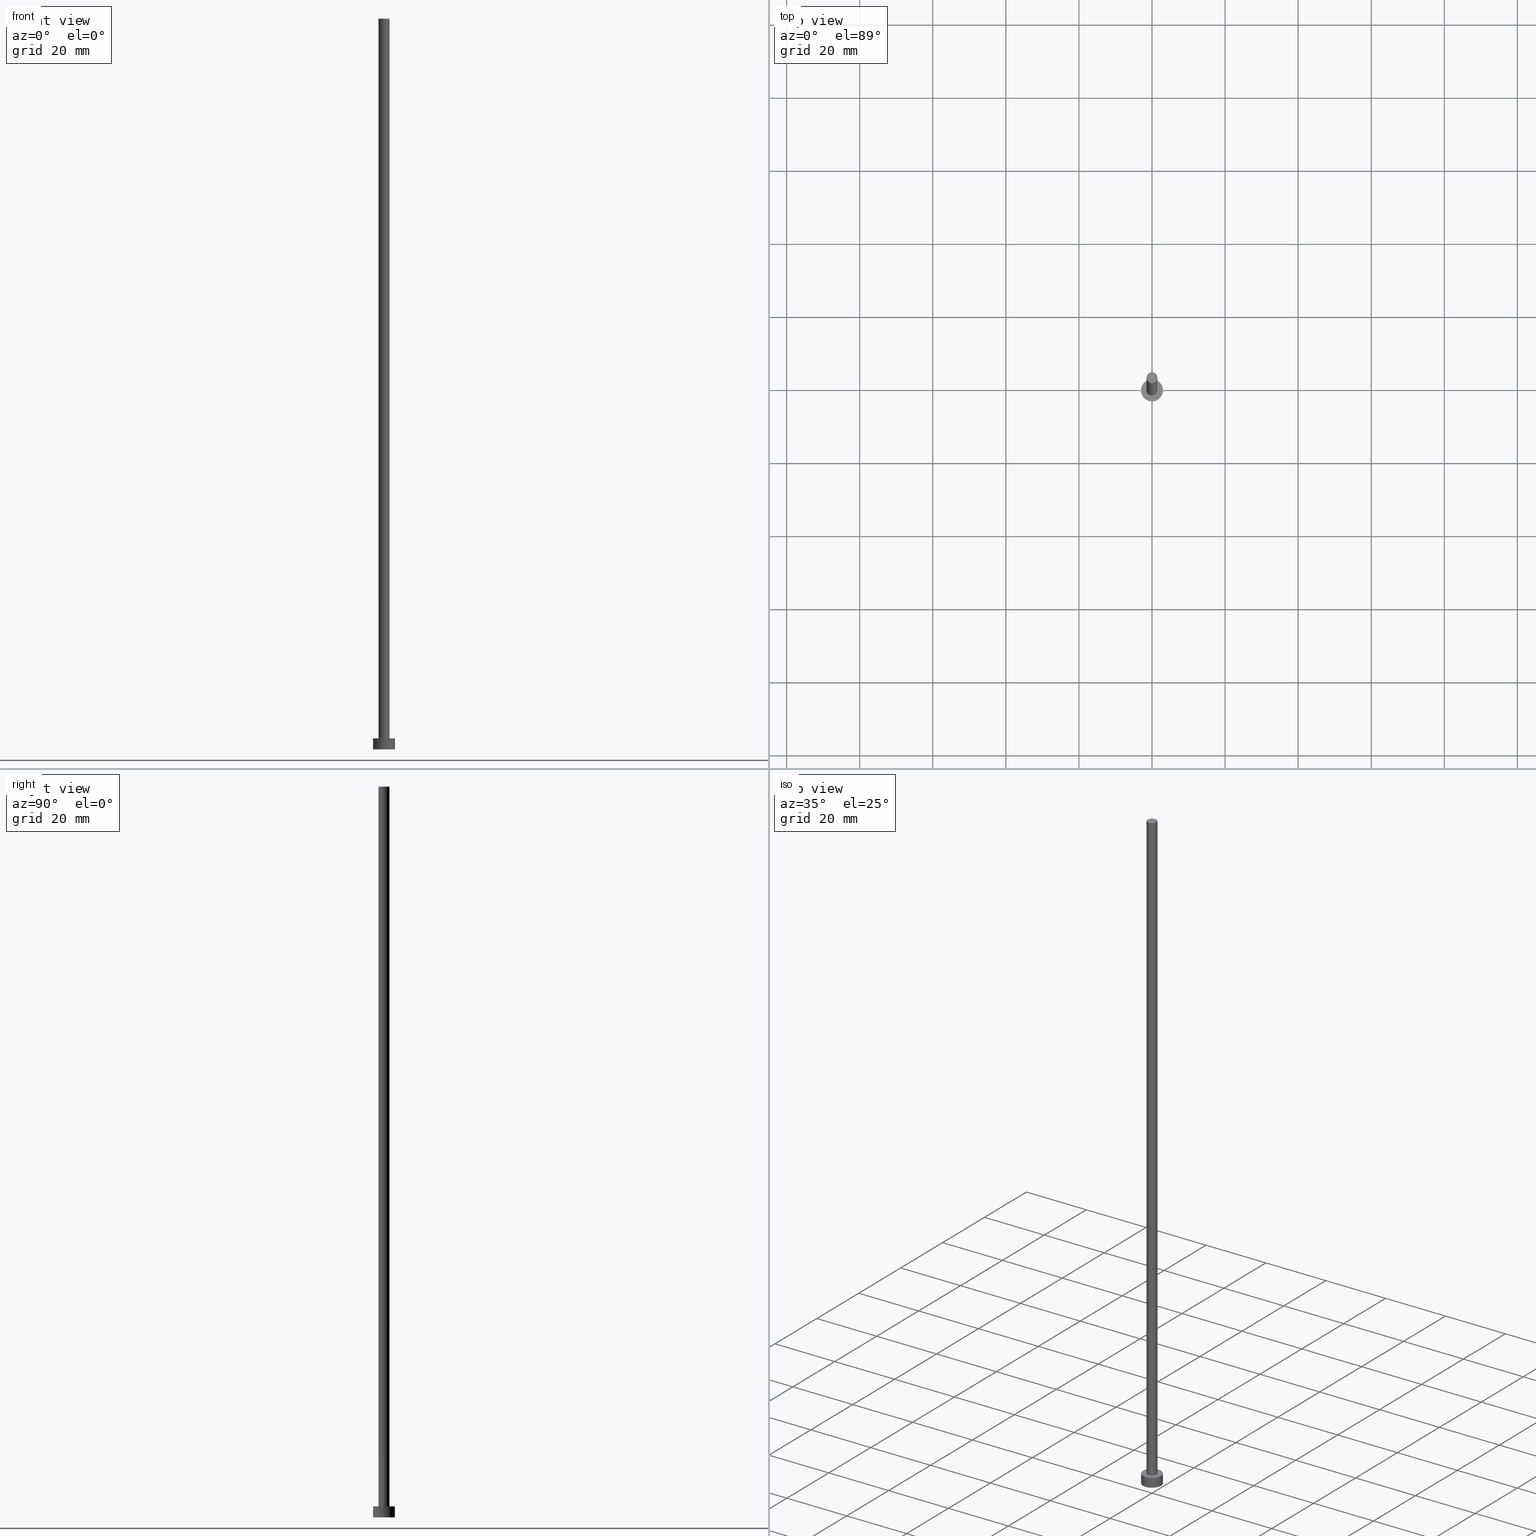
[diagram: canonical four-view strip — front | top / right | iso, engineering-drawing reading convention]
A machine part, canonical four-view strip (front | top / right | iso — engineering-drawing reading convention). The complete STEP part file that produces these views, byte-faithful:
ISO-10303-21;
HEADER;
FILE_DESCRIPTION (( 'STEP AP203' ),
    '1' );
FILE_NAME ('c027.STEP',
    '2023-02-12T12:13:31',
    ( '' ),
    ( '' ),
    'SwSTEP 2.0',
    'SolidWorks 2019',
    '' );
FILE_SCHEMA (( 'CONFIG_CONTROL_DESIGN' ));
ENDSEC;

DATA;
#1 = VERTEX_POINT ( 'NONE', #12 ) ;
#2 = EDGE_LOOP ( 'NONE', ( #252, #20, #218, #165 ) ) ;
#3 = SECURITY_CLASSIFICATION ( '', '', #123 ) ;
#4 = ORIENTED_EDGE ( 'NONE', *, *, #98, .F. ) ;
#5 = DIRECTION ( 'NONE',  ( 0.000000000000000000, 0.000000000000000000, 1.000000000000000000 ) ) ;
#6 = AXIS2_PLACEMENT_3D ( 'NONE', #31, #226, #181 ) ;
#7 = CARTESIAN_POINT ( 'NONE',  ( -3.000000000000000444, 0.000000000000000000, 3.000000000000000000 ) ) ;
#8 = DIRECTION ( 'NONE',  ( 1.000000000000000000, 0.000000000000000000, -0.000000000000000000 ) ) ;
#9 = CARTESIAN_POINT ( 'NONE',  ( 0.000000000000000000, 0.000000000000000000, 3.000000000000000000 ) ) ;
#10 = DIRECTION ( 'NONE',  ( -0.000000000000000000, -0.000000000000000000, -1.000000000000000000 ) ) ;
#11 = ADVANCED_FACE ( 'NONE', ( #78, #89 ), #15, .T. ) ;
#12 = CARTESIAN_POINT ( 'NONE',  ( 3.000000000000000444, 3.673940397442060361E-16, 0.000000000000000000 ) ) ;
#13 = APPLICATION_CONTEXT ( 'configuration controlled 3d designs of mechanical parts and assemblies' ) ;
#14 = CC_DESIGN_PERSON_AND_ORGANIZATION_ASSIGNMENT ( #71, #232, ( #106 ) ) ;
#15 = PLANE ( 'NONE',  #80 ) ;
#16 = ORIENTED_EDGE ( 'NONE', *, *, #21, .F. ) ;
#17 = PRODUCT_DEFINITION ( 'NEZN�M�', '', #106, #251 ) ;
#18 = AXIS2_PLACEMENT_3D ( 'NONE', #25, #136, #159 ) ;
#19 = CARTESIAN_POINT ( 'NONE',  ( 0.000000000000000000, 0.000000000000000000, 3.000000000000000000 ) ) ;
#20 = ORIENTED_EDGE ( 'NONE', *, *, #116, .F. ) ;
#21 = EDGE_CURVE ( 'NONE', #163, #172, #151, .T. ) ;
#22 = AXIS2_PLACEMENT_3D ( 'NONE', #28, #245, #83 ) ;
#23 = ORIENTED_EDGE ( 'NONE', *, *, #50, .T. ) ;
#24 = AXIS2_PLACEMENT_3D ( 'NONE', #19, #236, #56 ) ;
#25 = CARTESIAN_POINT ( 'NONE',  ( 0.000000000000000000, 0.000000000000000000, 3.000000000000000000 ) ) ;
#26 = APPROVAL ( #112, 'NEUR�EN�' ) ;
#27 =( NAMED_UNIT ( * ) SI_UNIT ( $, .STERADIAN. ) SOLID_ANGLE_UNIT ( ) );
#28 = CARTESIAN_POINT ( 'NONE',  ( 0.000000000000000000, 0.000000000000000000, 200.0000000000000000 ) ) ;
#29 = PRODUCT_DEFINITION_SHAPE ( 'NONE', 'NONE',  #17 ) ;
#30 = DIRECTION ( 'NONE',  ( 0.000000000000000000, 0.000000000000000000, 1.000000000000000000 ) ) ;
#31 = CARTESIAN_POINT ( 'NONE',  ( 0.000000000000000000, 0.000000000000000000, 200.0000000000000000 ) ) ;
#32 = CYLINDRICAL_SURFACE ( 'NONE', #225, 1.500000000000000222 ) ;
#33 = CC_DESIGN_APPROVAL ( #26, ( #17 ) ) ;
#34 = EDGE_LOOP ( 'NONE', ( #115, #154 ) ) ;
#35 = CC_DESIGN_APPROVAL ( #199, ( #3 ) ) ;
#36 = PERSON_AND_ORGANIZATION ( #135, #75 ) ;
#37 = VECTOR ( 'NONE', #198, 1000.000000000000000 ) ;
#38 = LOCAL_TIME ( 13, 13, 31.00000000000000000, #88 ) ;
#39 = ADVANCED_FACE ( 'NONE', ( #179 ), #157, .T. ) ;
#40 = ORIENTED_EDGE ( 'NONE', *, *, #203, .T. ) ;
#41 = PLANE ( 'NONE',  #215 ) ;
#42 = ORIENTED_EDGE ( 'NONE', *, *, #60, .F. ) ;
#43 = CIRCLE ( 'NONE', #64, 3.000000000000000444 ) ;
#44 = EDGE_LOOP ( 'NONE', ( #77, #59, #246, #134 ) ) ;
#45 = DIRECTION ( 'NONE',  ( 1.000000000000000000, 0.000000000000000000, -0.000000000000000000 ) ) ;
#46 = CC_DESIGN_PERSON_AND_ORGANIZATION_ASSIGNMENT ( #231, #107, ( #106 ) ) ;
#47 = FACE_OUTER_BOUND ( 'NONE', #97, .T. ) ;
#48 = CIRCLE ( 'NONE', #187, 3.000000000000000444 ) ;
#49 = CARTESIAN_POINT ( 'NONE',  ( 1.500000000000000222, 1.836970198721030181E-16, 200.0000000000000000 ) ) ;
#50 = EDGE_CURVE ( 'NONE', #130, #152, #57, .T. ) ;
#51 = DIRECTION ( 'NONE',  ( 1.000000000000000000, 0.000000000000000000, 0.000000000000000000 ) ) ;
#52 = DIRECTION ( 'NONE',  ( -1.000000000000000000, 0.000000000000000000, 0.000000000000000000 ) ) ;
#53 = ADVANCED_FACE ( 'NONE', ( #81 ), #66, .T. ) ;
#54 = CC_DESIGN_DATE_AND_TIME_ASSIGNMENT ( #248, #182, ( #3 ) ) ;
#55 = DATE_AND_TIME ( #74, #109 ) ;
#56 = DIRECTION ( 'NONE',  ( 1.000000000000000000, 0.000000000000000000, 0.000000000000000000 ) ) ;
#57 = CIRCLE ( 'NONE', #156, 1.500000000000000222 ) ;
#58 = CARTESIAN_POINT ( 'NONE',  ( 1.500000000000000222, 1.836970198721030181E-16, 200.0000000000000000 ) ) ;
#59 = ORIENTED_EDGE ( 'NONE', *, *, #213, .T. ) ;
#60 = EDGE_CURVE ( 'NONE', #117, #211, #146, .T. ) ;
#61 = CARTESIAN_POINT ( 'NONE',  ( 0.000000000000000000, 0.000000000000000000, 3.000000000000000000 ) ) ;
#62 = CARTESIAN_POINT ( 'NONE',  ( 0.000000000000000000, 0.000000000000000000, 3.000000000000000000 ) ) ;
#63 = DIRECTION ( 'NONE',  ( 0.000000000000000000, 0.000000000000000000, 1.000000000000000000 ) ) ;
#64 = AXIS2_PLACEMENT_3D ( 'NONE', #162, #5, #79 ) ;
#65 = CARTESIAN_POINT ( 'NONE',  ( 0.000000000000000000, 0.000000000000000000, 0.000000000000000000 ) ) ;
#66 = CYLINDRICAL_SURFACE ( 'NONE', #6, 1.500000000000000222 ) ;
#67 = LINE ( 'NONE', #176, #76 ) ;
#68 = MECHANICAL_CONTEXT ( 'NONE', #100, 'mechanical' ) ;
#69 = EDGE_CURVE ( 'NONE', #211, #1, #239, .T. ) ;
#70 = VECTOR ( 'NONE', #86, 1000.000000000000000 ) ;
#71 = PERSON_AND_ORGANIZATION ( #135, #75 ) ;
#72 = VERTEX_POINT ( 'NONE', #222 ) ;
#73 = CC_DESIGN_PERSON_AND_ORGANIZATION_ASSIGNMENT ( #175, #158, ( #17 ) ) ;
#74 = CALENDAR_DATE ( 2023, 12, 2 ) ;
#75 = ORGANIZATION ( 'NEUR�EN�', 'NEUR�EN�', '' ) ;
#76 = VECTOR ( 'NONE', #10, 1000.000000000000000 ) ;
#77 = ORIENTED_EDGE ( 'NONE', *, *, #50, .F. ) ;
#78 = FACE_BOUND ( 'NONE', #155, .T. ) ;
#79 = DIRECTION ( 'NONE',  ( 1.000000000000000000, 0.000000000000000000, 0.000000000000000000 ) ) ;
#80 = AXIS2_PLACEMENT_3D ( 'NONE', #91, #102, #8 ) ;
#81 = FACE_OUTER_BOUND ( 'NONE', #44, .T. ) ;
#82 = COORDINATED_UNIVERSAL_TIME_OFFSET ( 1, 0, .AHEAD. ) ;
#83 = DIRECTION ( 'NONE',  ( 1.000000000000000000, 0.000000000000000000, 0.000000000000000000 ) ) ;
#84 = DIRECTION ( 'NONE',  ( -1.000000000000000000, 0.000000000000000000, 0.000000000000000000 ) ) ;
#85 = PERSON_AND_ORGANIZATION ( #135, #75 ) ;
#86 = DIRECTION ( 'NONE',  ( -0.000000000000000000, -0.000000000000000000, -1.000000000000000000 ) ) ;
#87 = SHAPE_DEFINITION_REPRESENTATION ( #29, #197 ) ;
#88 = COORDINATED_UNIVERSAL_TIME_OFFSET ( 1, 0, .AHEAD. ) ;
#89 = FACE_OUTER_BOUND ( 'NONE', #34, .T. ) ;
#90 = APPROVAL_STATUS ( 'not_yet_approved' ) ;
#91 = CARTESIAN_POINT ( 'NONE',  ( 0.000000000000000000, 0.000000000000000000, 3.000000000000000000 ) ) ;
#92 = CC_DESIGN_PERSON_AND_ORGANIZATION_ASSIGNMENT ( #144, #105, ( #202 ) ) ;
#93 =( GEOMETRIC_REPRESENTATION_CONTEXT ( 3 ) GLOBAL_UNCERTAINTY_ASSIGNED_CONTEXT ( ( #189 ) ) GLOBAL_UNIT_ASSIGNED_CONTEXT ( ( #171, #131, #27 ) ) REPRESENTATION_CONTEXT ( 'NONE', 'WORKASPACE' ) );
#94 = ORIENTED_EDGE ( 'NONE', *, *, #133, .T. ) ;
#95 = ORIENTED_EDGE ( 'NONE', *, *, #69, .T. ) ;
#96 = DIRECTION ( 'NONE',  ( -0.000000000000000000, -0.000000000000000000, -1.000000000000000000 ) ) ;
#97 = EDGE_LOOP ( 'NONE', ( #108, #234 ) ) ;
#98 = EDGE_CURVE ( 'NONE', #172, #163, #177, .T. ) ;
#99 = FACE_OUTER_BOUND ( 'NONE', #193, .T. ) ;
#100 = APPLICATION_CONTEXT ( 'configuration controlled 3d designs of mechanical parts and assemblies' ) ;
#101 = DIRECTION ( 'NONE',  ( 0.000000000000000000, 0.000000000000000000, 1.000000000000000000 ) ) ;
#102 = DIRECTION ( 'NONE',  ( 0.000000000000000000, 0.000000000000000000, 1.000000000000000000 ) ) ;
#103 = PLANE ( 'NONE',  #201 ) ;
#104 = DIRECTION ( 'NONE',  ( -0.000000000000000000, -0.000000000000000000, -1.000000000000000000 ) ) ;
#105 = PERSON_AND_ORGANIZATION_ROLE ( 'design_owner' ) ;
#106 = PRODUCT_DEFINITION_FORMATION_WITH_SPECIFIED_SOURCE ( 'LIBOVOLN�', '', #202, .NOT_KNOWN. ) ;
#107 = PERSON_AND_ORGANIZATION_ROLE ( 'design_supplier' ) ;
#108 = ORIENTED_EDGE ( 'NONE', *, *, #203, .F. ) ;
#109 = LOCAL_TIME ( 13, 13, 31.00000000000000000, #253 ) ;
#110 = APPROVAL_ROLE ( '' ) ;
#111 = ADVANCED_FACE ( 'NONE', ( #47 ), #103, .F. ) ;
#112 = APPROVAL_STATUS ( 'not_yet_approved' ) ;
#113 = APPROVAL_DATE_TIME ( #55, #26 ) ;
#114 = CARTESIAN_POINT ( 'NONE',  ( 0.000000000000000000, 0.000000000000000000, 200.0000000000000000 ) ) ;
#115 = ORIENTED_EDGE ( 'NONE', *, *, #60, .T. ) ;
#116 = EDGE_CURVE ( 'NONE', #152, #130, #141, .T. ) ;
#117 = VERTEX_POINT ( 'NONE', #7 ) ;
#118 = CARTESIAN_POINT ( 'NONE',  ( -3.000000000000000444, 0.000000000000000000, 3.000000000000000000 ) ) ;
#119 = DIRECTION ( 'NONE',  ( -0.000000000000000000, -0.000000000000000000, -1.000000000000000000 ) ) ;
#120 = CARTESIAN_POINT ( 'NONE',  ( -1.500000000000000222, 0.000000000000000000, 3.000000000000000000 ) ) ;
#121 = APPROVAL_PERSON_ORGANIZATION ( #85, #199, #191 ) ;
#122 = FACE_OUTER_BOUND ( 'NONE', #2, .T. ) ;
#123 = SECURITY_CLASSIFICATION_LEVEL ( 'unclassified' ) ;
#124 = ADVANCED_FACE ( 'NONE', ( #99 ), #242, .T. ) ;
#125 = CLOSED_SHELL ( 'NONE', ( #53, #39, #124, #11, #111, #170, #235 ) ) ;
#126 = CC_DESIGN_PERSON_AND_ORGANIZATION_ASSIGNMENT ( #178, #223, ( #3 ) ) ;
#127 = ORIENTED_EDGE ( 'NONE', *, *, #133, .F. ) ;
#128 = AXIS2_PLACEMENT_3D ( 'NONE', #61, #63, #142 ) ;
#129 = COORDINATED_UNIVERSAL_TIME_OFFSET ( 1, 0, .AHEAD. ) ;
#130 = VERTEX_POINT ( 'NONE', #49 ) ;
#131 =( NAMED_UNIT ( * ) PLANE_ANGLE_UNIT ( ) SI_UNIT ( $, .RADIAN. ) );
#132 = EDGE_LOOP ( 'NONE', ( #169, #23 ) ) ;
#133 = EDGE_CURVE ( 'NONE', #117, #72, #224, .T. ) ;
#134 = ORIENTED_EDGE ( 'NONE', *, *, #186, .F. ) ;
#135 = PERSON ( 'NEUR�EN�', 'NEUR�EN�', 'NEUR�EN�', ('NEUR�EN�'), ('NEUR�EN�'), ('NEUR�EN�') ) ;
#136 = DIRECTION ( 'NONE',  ( 0.000000000000000000, 0.000000000000000000, 1.000000000000000000 ) ) ;
#137 = LOCAL_TIME ( 13, 13, 31.00000000000000000, #240 ) ;
#138 = CC_DESIGN_DATE_AND_TIME_ASSIGNMENT ( #148, #233, ( #17 ) ) ;
#139 = CARTESIAN_POINT ( 'NONE',  ( 0.000000000000000000, 0.000000000000000000, 3.000000000000000000 ) ) ;
#140 = CARTESIAN_POINT ( 'NONE',  ( 3.000000000000000444, 3.673940397442060361E-16, 3.000000000000000000 ) ) ;
#141 = CIRCLE ( 'NONE', #22, 1.500000000000000222 ) ;
#142 = DIRECTION ( 'NONE',  ( 1.000000000000000000, 0.000000000000000000, 0.000000000000000000 ) ) ;
#143 = LOCAL_TIME ( 13, 13, 31.00000000000000000, #82 ) ;
#144 = PERSON_AND_ORGANIZATION ( #135, #75 ) ;
#145 = CARTESIAN_POINT ( 'NONE',  ( 0.000000000000000000, 0.000000000000000000, 200.0000000000000000 ) ) ;
#146 = CIRCLE ( 'NONE', #238, 3.000000000000000444 ) ;
#147 = DATE_AND_TIME ( #237, #137 ) ;
#148 = DATE_AND_TIME ( #254, #190 ) ;
#149 = AXIS2_PLACEMENT_3D ( 'NONE', #62, #119, #84 ) ;
#150 = APPROVAL_STATUS ( 'not_yet_approved' ) ;
#151 = CIRCLE ( 'NONE', #18, 1.500000000000000222 ) ;
#152 = VERTEX_POINT ( 'NONE', #230 ) ;
#153 = CC_DESIGN_APPROVAL ( #217, ( #106 ) ) ;
#154 = ORIENTED_EDGE ( 'NONE', *, *, #247, .T. ) ;
#155 = EDGE_LOOP ( 'NONE', ( #16, #4 ) ) ;
#156 = AXIS2_PLACEMENT_3D ( 'NONE', #145, #204, #160 ) ;
#157 = CYLINDRICAL_SURFACE ( 'NONE', #210, 3.000000000000000444 ) ;
#158 = PERSON_AND_ORGANIZATION_ROLE ( 'creator' ) ;
#159 = DIRECTION ( 'NONE',  ( 1.000000000000000000, 0.000000000000000000, 0.000000000000000000 ) ) ;
#160 = DIRECTION ( 'NONE',  ( 1.000000000000000000, 0.000000000000000000, 0.000000000000000000 ) ) ;
#161 = DIRECTION ( 'NONE',  ( 0.000000000000000000, 0.000000000000000000, 1.000000000000000000 ) ) ;
#162 = CARTESIAN_POINT ( 'NONE',  ( 0.000000000000000000, 0.000000000000000000, 0.000000000000000000 ) ) ;
#163 = VERTEX_POINT ( 'NONE', #120 ) ;
#164 = APPROVAL_DATE_TIME ( #147, #217 ) ;
#165 = ORIENTED_EDGE ( 'NONE', *, *, #21, .T. ) ;
#166 = APPLICATION_PROTOCOL_DEFINITION ( 'international standard', 'config_control_design', 1994, #13 ) ;
#167 = EDGE_CURVE ( 'NONE', #1, #72, #48, .T. ) ;
#168 = CC_DESIGN_SECURITY_CLASSIFICATION ( #3, ( #106 ) ) ;
#169 = ORIENTED_EDGE ( 'NONE', *, *, #116, .T. ) ;
#170 = ADVANCED_FACE ( 'NONE', ( #122 ), #32, .T. ) ;
#171 =( LENGTH_UNIT ( ) NAMED_UNIT ( * ) SI_UNIT ( .MILLI., .METRE. ) );
#172 = VERTEX_POINT ( 'NONE', #183 ) ;
#173 = PERSON_AND_ORGANIZATION ( #135, #75 ) ;
#174 = ORIENTED_EDGE ( 'NONE', *, *, #69, .F. ) ;
#175 = PERSON_AND_ORGANIZATION ( #135, #75 ) ;
#176 = CARTESIAN_POINT ( 'NONE',  ( -1.500000000000000222, 0.000000000000000000, 200.0000000000000000 ) ) ;
#177 = CIRCLE ( 'NONE', #128, 1.500000000000000222 ) ;
#178 = PERSON_AND_ORGANIZATION ( #135, #75 ) ;
#179 = FACE_OUTER_BOUND ( 'NONE', #214, .T. ) ;
#180 = DIRECTION ( 'NONE',  ( -0.000000000000000000, -0.000000000000000000, -1.000000000000000000 ) ) ;
#181 = DIRECTION ( 'NONE',  ( -1.000000000000000000, 0.000000000000000000, 0.000000000000000000 ) ) ;
#182 = DATE_TIME_ROLE ( 'classification_date' ) ;
#183 = CARTESIAN_POINT ( 'NONE',  ( 1.500000000000000222, 1.836970198721030181E-16, 3.000000000000000000 ) ) ;
#184 = PRODUCT_RELATED_PRODUCT_CATEGORY ( 'detail', '', ( #202 ) ) ;
#185 = AXIS2_PLACEMENT_3D ( 'NONE', #65, #216, #188 ) ;
#186 = EDGE_CURVE ( 'NONE', #152, #163, #67, .T. ) ;
#187 = AXIS2_PLACEMENT_3D ( 'NONE', #227, #161, #51 ) ;
#188 = DIRECTION ( 'NONE',  ( 1.000000000000000000, 0.000000000000000000, 0.000000000000000000 ) ) ;
#189 = UNCERTAINTY_MEASURE_WITH_UNIT (LENGTH_MEASURE( 1.000000000000000082E-05 ), #171, 'distance_accuracy_value', 'NONE');
#190 = LOCAL_TIME ( 13, 13, 31.00000000000000000, #129 ) ;
#191 = APPROVAL_ROLE ( '' ) ;
#192 = ORIENTED_EDGE ( 'NONE', *, *, #167, .T. ) ;
#193 = EDGE_LOOP ( 'NONE', ( #174, #42, #94, #40 ) ) ;
#194 = DIRECTION ( 'NONE',  ( 1.000000000000000000, 0.000000000000000000, -0.000000000000000000 ) ) ;
#195 = ORIENTED_EDGE ( 'NONE', *, *, #247, .F. ) ;
#196 = DIRECTION ( 'NONE',  ( 0.000000000000000000, 0.000000000000000000, 1.000000000000000000 ) ) ;
#197 = ADVANCED_BREP_SHAPE_REPRESENTATION ( 'c027', ( #212, #185 ), #93 ) ;
#198 = DIRECTION ( 'NONE',  ( -0.000000000000000000, -0.000000000000000000, -1.000000000000000000 ) ) ;
#199 = APPROVAL ( #90, 'NEUR�EN�' ) ;
#200 = CARTESIAN_POINT ( 'NONE',  ( 0.000000000000000000, 0.000000000000000000, 200.0000000000000000 ) ) ;
#201 = AXIS2_PLACEMENT_3D ( 'NONE', #243, #30, #45 ) ;
#202 = PRODUCT ( 'c027', 'c027', '', ( #68 ) ) ;
#203 = EDGE_CURVE ( 'NONE', #72, #1, #43, .T. ) ;
#204 = DIRECTION ( 'NONE',  ( 0.000000000000000000, 0.000000000000000000, 1.000000000000000000 ) ) ;
#205 = APPROVAL_PERSON_ORGANIZATION ( #36, #26, #110 ) ;
#206 = DIRECTION ( 'NONE',  ( 1.000000000000000000, 0.000000000000000000, 0.000000000000000000 ) ) ;
#207 = APPROVAL_DATE_TIME ( #249, #199 ) ;
#208 = VECTOR ( 'NONE', #96, 1000.000000000000000 ) ;
#209 = CALENDAR_DATE ( 2023, 12, 2 ) ;
#210 = AXIS2_PLACEMENT_3D ( 'NONE', #139, #180, #244 ) ;
#211 = VERTEX_POINT ( 'NONE', #221 ) ;
#212 = MANIFOLD_SOLID_BREP ( 'P�idat vysunut�m3', #125 ) ;
#213 = EDGE_CURVE ( 'NONE', #130, #172, #241, .T. ) ;
#214 = EDGE_LOOP ( 'NONE', ( #195, #95, #192, #127 ) ) ;
#215 = AXIS2_PLACEMENT_3D ( 'NONE', #114, #196, #194 ) ;
#216 = DIRECTION ( 'NONE',  ( 0.000000000000000000, 0.000000000000000000, 1.000000000000000000 ) ) ;
#217 = APPROVAL ( #150, 'NEUR�EN�' ) ;
#218 = ORIENTED_EDGE ( 'NONE', *, *, #186, .T. ) ;
#219 = FACE_OUTER_BOUND ( 'NONE', #132, .T. ) ;
#220 = APPROVAL_ROLE ( '' ) ;
#221 = CARTESIAN_POINT ( 'NONE',  ( 3.000000000000000444, 3.673940397442060361E-16, 3.000000000000000000 ) ) ;
#222 = CARTESIAN_POINT ( 'NONE',  ( -3.000000000000000444, 0.000000000000000000, 0.000000000000000000 ) ) ;
#223 = PERSON_AND_ORGANIZATION_ROLE ( 'classification_officer' ) ;
#224 = LINE ( 'NONE', #118, #70 ) ;
#225 = AXIS2_PLACEMENT_3D ( 'NONE', #200, #104, #52 ) ;
#226 = DIRECTION ( 'NONE',  ( -0.000000000000000000, -0.000000000000000000, -1.000000000000000000 ) ) ;
#227 = CARTESIAN_POINT ( 'NONE',  ( 0.000000000000000000, 0.000000000000000000, 0.000000000000000000 ) ) ;
#228 = CALENDAR_DATE ( 2023, 12, 2 ) ;
#229 = CIRCLE ( 'NONE', #24, 3.000000000000000444 ) ;
#230 = CARTESIAN_POINT ( 'NONE',  ( -1.500000000000000222, 0.000000000000000000, 200.0000000000000000 ) ) ;
#231 = PERSON_AND_ORGANIZATION ( #135, #75 ) ;
#232 = PERSON_AND_ORGANIZATION_ROLE ( 'creator' ) ;
#233 = DATE_TIME_ROLE ( 'creation_date' ) ;
#234 = ORIENTED_EDGE ( 'NONE', *, *, #167, .F. ) ;
#235 = ADVANCED_FACE ( 'NONE', ( #219 ), #41, .T. ) ;
#236 = DIRECTION ( 'NONE',  ( 0.000000000000000000, 0.000000000000000000, 1.000000000000000000 ) ) ;
#237 = CALENDAR_DATE ( 2023, 12, 2 ) ;
#238 = AXIS2_PLACEMENT_3D ( 'NONE', #9, #101, #206 ) ;
#239 = LINE ( 'NONE', #140, #37 ) ;
#240 = COORDINATED_UNIVERSAL_TIME_OFFSET ( 1, 0, .AHEAD. ) ;
#241 = LINE ( 'NONE', #58, #208 ) ;
#242 = CYLINDRICAL_SURFACE ( 'NONE', #149, 3.000000000000000444 ) ;
#243 = CARTESIAN_POINT ( 'NONE',  ( 0.000000000000000000, 0.000000000000000000, 0.000000000000000000 ) ) ;
#244 = DIRECTION ( 'NONE',  ( -1.000000000000000000, 0.000000000000000000, 0.000000000000000000 ) ) ;
#245 = DIRECTION ( 'NONE',  ( 0.000000000000000000, 0.000000000000000000, 1.000000000000000000 ) ) ;
#246 = ORIENTED_EDGE ( 'NONE', *, *, #98, .T. ) ;
#247 = EDGE_CURVE ( 'NONE', #211, #117, #229, .T. ) ;
#248 = DATE_AND_TIME ( #228, #143 ) ;
#249 = DATE_AND_TIME ( #209, #38 ) ;
#250 = APPLICATION_PROTOCOL_DEFINITION ( 'international standard', 'config_control_design', 1994, #100 ) ;
#251 = DESIGN_CONTEXT ( 'detailed design', #13, 'design' ) ;
#252 = ORIENTED_EDGE ( 'NONE', *, *, #213, .F. ) ;
#253 = COORDINATED_UNIVERSAL_TIME_OFFSET ( 1, 0, .AHEAD. ) ;
#254 = CALENDAR_DATE ( 2023, 12, 2 ) ;
#255 = APPROVAL_PERSON_ORGANIZATION ( #173, #217, #220 ) ;
ENDSEC;
END-ISO-10303-21;
